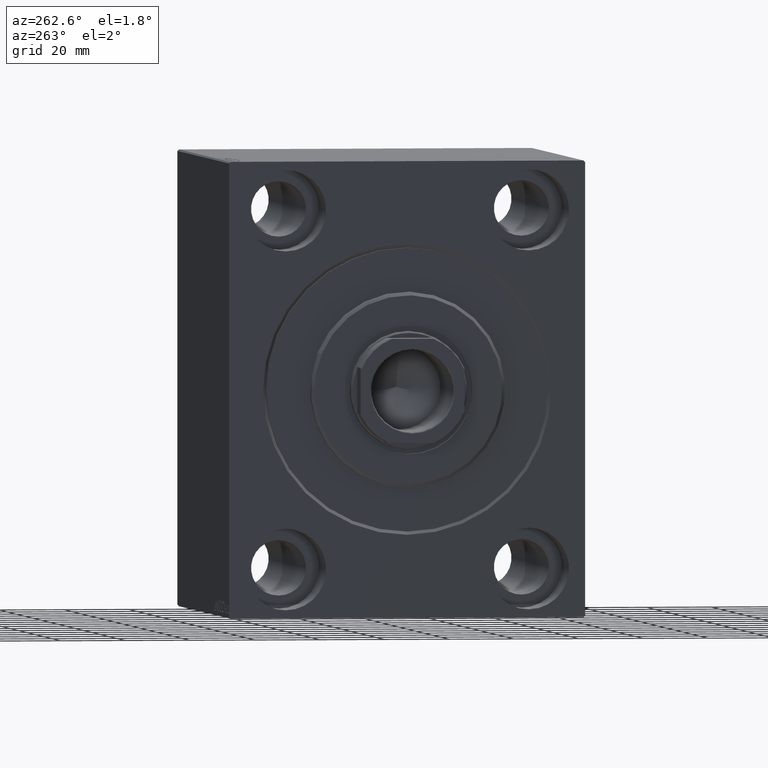
[diagram: clean part render]
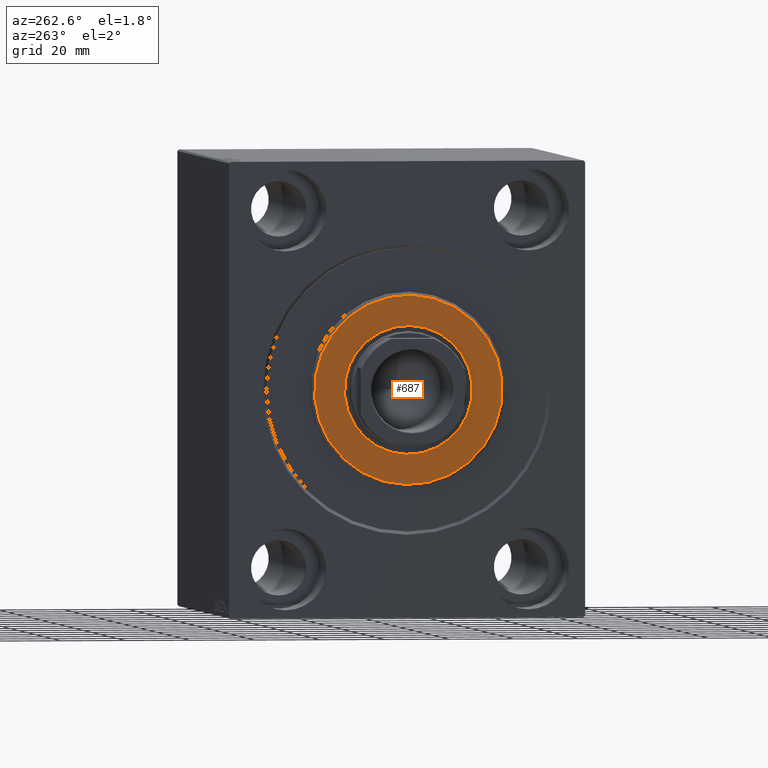
[diagram: same view with one face highlighted and labeled with its STEP entity id]
A machine part, auxiliary view. The second image highlights one B-rep face of the part: STEP entity #687.
In plain terms, the highlighted planar face has unit normal (-1, 0, 0).
Its self-contained STEP definition (entity closure, byte-faithful):
#3 = DIRECTION ( 'NONE',  ( 1.000000000000000000, -0.000000000000000000, 0.000000000000000000 ) ) ;
#481 = FACE_OUTER_BOUND ( 'NONE', #38049, .T. ) ;
#687 = ADVANCED_FACE ( 'NONE', ( #481, #13658 ), #17202, .T. ) ;
#1776 = CIRCLE ( 'NONE', #31670, 29.00000000000002132 ) ;
#4775 = EDGE_CURVE ( 'NONE', #27509, #17244, #24167, .T. ) ;
#6680 = EDGE_CURVE ( 'NONE', #17244, #27509, #24921, .T. ) ;
#8578 = DIRECTION ( 'NONE',  ( -1.000000000000000000, 0.000000000000000000, -0.000000000000000000 ) ) ;
#9035 = ORIENTED_EDGE ( 'NONE', *, *, #4775, .T. ) ;
#9948 = AXIS2_PLACEMENT_3D ( 'NONE', #39303, #8578, #38640 ) ;
#10006 = CARTESIAN_POINT ( 'NONE',  ( 3.000000000000000000, 0.000000000000000000, 19.75000000000000000 ) ) ;
#12579 = DIRECTION ( 'NONE',  ( 0.000000000000000000, 0.000000000000000000, -1.000000000000000000 ) ) ;
#12958 = DIRECTION ( 'NONE',  ( 0.000000000000000000, 0.000000000000000000, -1.000000000000000000 ) ) ;
#13394 = CARTESIAN_POINT ( 'NONE',  ( 3.000000000000000000, 0.000000000000000000, 0.000000000000000000 ) ) ;
#13658 = FACE_BOUND ( 'NONE', #40627, .T. ) ;
#13989 = AXIS2_PLACEMENT_3D ( 'NONE', #14085, #20113, #20983 ) ;
#14085 = CARTESIAN_POINT ( 'NONE',  ( 3.000000000000000000, 0.000000000000000000, 0.000000000000000000 ) ) ;
#17106 = VERTEX_POINT ( 'NONE', #24166 ) ;
#17202 = PLANE ( 'NONE',  #13989 ) ;
#17244 = VERTEX_POINT ( 'NONE', #43714 ) ;
#20113 = DIRECTION ( 'NONE',  ( 1.000000000000000000, -0.000000000000000000, 0.000000000000000000 ) ) ;
#20725 = CARTESIAN_POINT ( 'NONE',  ( 3.000000000000000000, 0.000000000000000000, 29.00000000000002132 ) ) ;
#20983 = DIRECTION ( 'NONE',  ( 0.000000000000000000, 0.000000000000000000, -1.000000000000000000 ) ) ;
#21928 = CARTESIAN_POINT ( 'NONE',  ( 3.000000000000000000, 0.000000000000000000, 0.000000000000000000 ) ) ;
#24166 = CARTESIAN_POINT ( 'NONE',  ( 3.000000000000000000, 3.612708057484693181E-15, -29.00000000000002132 ) ) ;
#24167 = CIRCLE ( 'NONE', #9948, 19.75000000000000000 ) ;
#24509 = EDGE_CURVE ( 'NONE', #36300, #17106, #35861, .T. ) ;
#24921 = CIRCLE ( 'NONE', #34859, 19.75000000000000000 ) ;
#27509 = VERTEX_POINT ( 'NONE', #10006 ) ;
#28299 = ORIENTED_EDGE ( 'NONE', *, *, #31209, .T. ) ;
#31209 = EDGE_CURVE ( 'NONE', #17106, #36300, #1776, .T. ) ;
#31670 = AXIS2_PLACEMENT_3D ( 'NONE', #21928, #31931, #39051 ) ;
#31931 = DIRECTION ( 'NONE',  ( 1.000000000000000000, -0.000000000000000000, 0.000000000000000000 ) ) ;
#32403 = ORIENTED_EDGE ( 'NONE', *, *, #24509, .T. ) ;
#34859 = AXIS2_PLACEMENT_3D ( 'NONE', #39282, #39724, #12579 ) ;
#35861 = CIRCLE ( 'NONE', #41557, 29.00000000000002132 ) ;
#35959 = ORIENTED_EDGE ( 'NONE', *, *, #6680, .T. ) ;
#36300 = VERTEX_POINT ( 'NONE', #20725 ) ;
#38049 = EDGE_LOOP ( 'NONE', ( #32403, #28299 ) ) ;
#38640 = DIRECTION ( 'NONE',  ( 0.000000000000000000, 0.000000000000000000, -1.000000000000000000 ) ) ;
#39051 = DIRECTION ( 'NONE',  ( 0.000000000000000000, 0.000000000000000000, -1.000000000000000000 ) ) ;
#39282 = CARTESIAN_POINT ( 'NONE',  ( 3.000000000000000000, 0.000000000000000000, 0.000000000000000000 ) ) ;
#39303 = CARTESIAN_POINT ( 'NONE',  ( 3.000000000000000000, 0.000000000000000000, 0.000000000000000000 ) ) ;
#39724 = DIRECTION ( 'NONE',  ( -1.000000000000000000, 0.000000000000000000, -0.000000000000000000 ) ) ;
#40627 = EDGE_LOOP ( 'NONE', ( #9035, #35959 ) ) ;
#41557 = AXIS2_PLACEMENT_3D ( 'NONE', #13394, #3, #12958 ) ;
#43714 = CARTESIAN_POINT ( 'NONE',  ( 3.000000000000000000, 2.418677428316022331E-15, -19.75000000000000000 ) ) ;